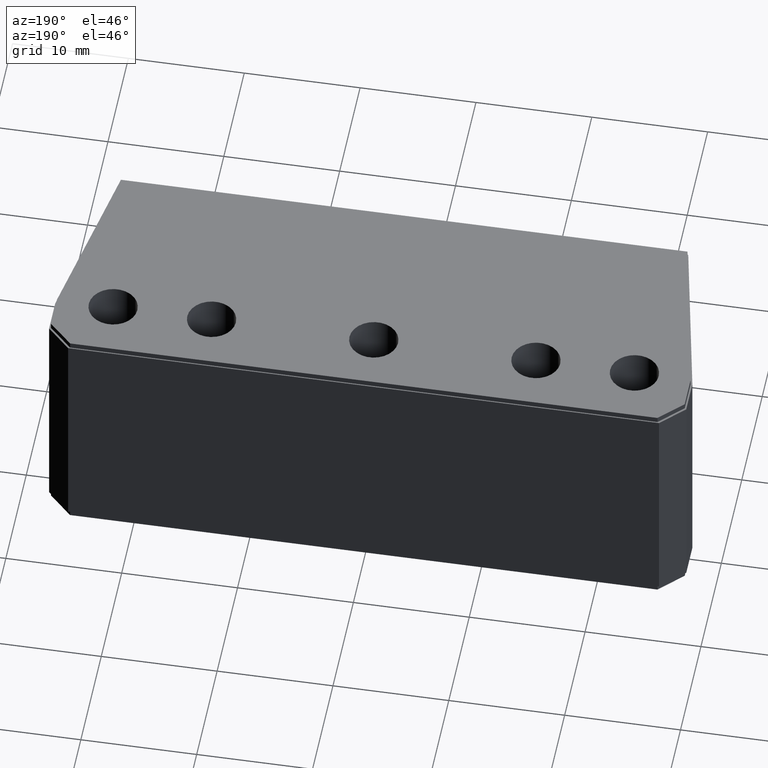
[diagram: clean part render]
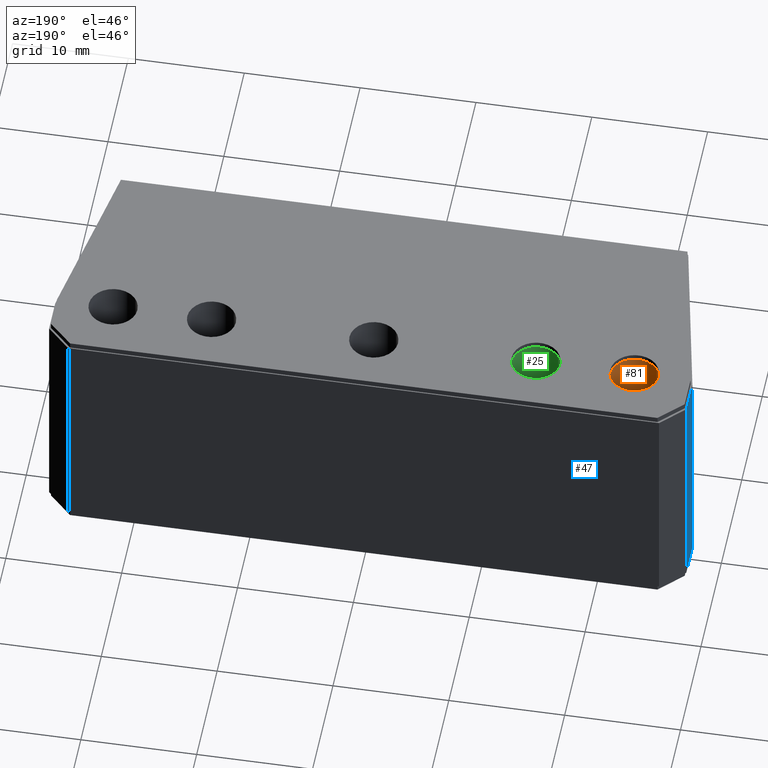
[diagram: same view with three faces highlighted in distinct colors, each labeled with its STEP entity id]
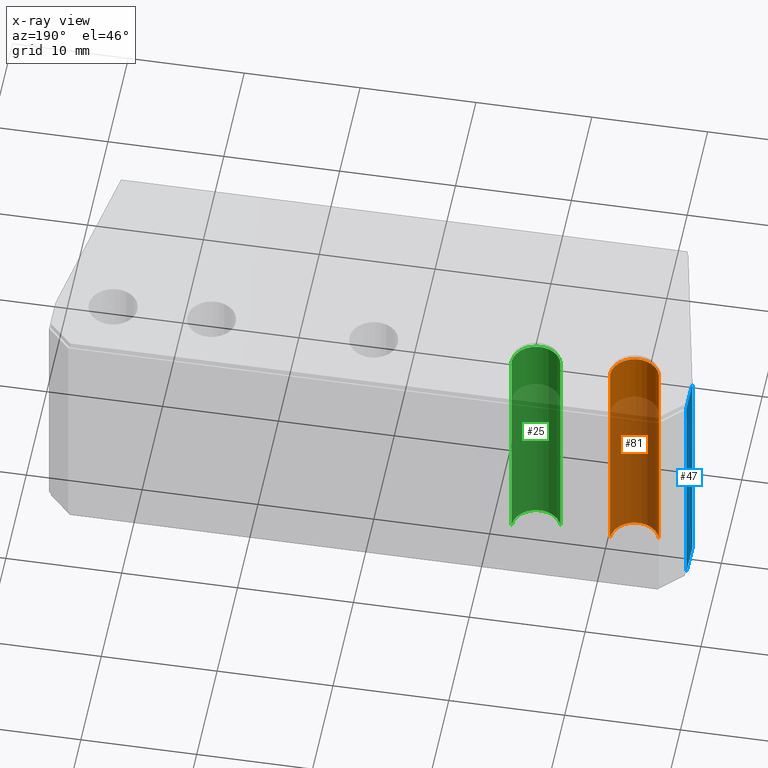
[diagram: x-ray of the same camera — body ghosted, the three highlighted faces saturated]
A machine part, auxiliary view with three faces highlighted in distinct colors.
The next image is the same camera in x-ray (body ghosted, the three faces saturated) — at least one of them is partly hidden behind the body in this view.
Their STEP definitions:

[orange] entity #81 — the highlighted cylindrical surface (edge-blend (fillet) strip) has radius 2.1 mm, axis along (0, 0, 1).
#81 = ADVANCED_FACE ( 'NONE', ( #1959 ), #1960, .F. ) ;
#177 = EDGE_CURVE ( 'NONE', #2786, #2785, #733, .T. ) ;
#181 = EDGE_CURVE ( 'NONE', #2785, #2780, #1645, .T. ) ;
#190 = EDGE_CURVE ( 'NONE', #2786, #2779, #1624, .T. ) ;
#192 = EDGE_CURVE ( 'NONE', #2780, #2779, #674, .T. ) ;
#341 = AXIS2_PLACEMENT_3D ( 'NONE', #1966, #1963, #1958 ) ;
#421 = VECTOR ( 'NONE', #1606, 1000.000000000000000 ) ;
#531 = AXIS2_PLACEMENT_3D ( 'NONE', #1602, #1601, #1600 ) ;
#556 = AXIS2_PLACEMENT_3D ( 'NONE', #1648, #1647, #1646 ) ;
#558 = VECTOR ( 'NONE', #1636, 1000.000000000000000 ) ;
#674 = CIRCLE ( 'NONE', #531, 2.100000000000001000 ) ;
#733 = CIRCLE ( 'NONE', #556, 2.100000000000001000 ) ;
#853 = EDGE_LOOP ( 'NONE', ( #3029, #3030, #2957, #2958 ) ) ;
#1600 = DIRECTION ( 'NONE',  ( 1.000000000000000000, 0.0000000000000000000, 0.0000000000000000000 ) ) ;
#1601 = DIRECTION ( 'NONE',  ( 0.0000000000000000000, 0.0000000000000000000, 1.000000000000000000 ) ) ;
#1602 = CARTESIAN_POINT ( 'NONE',  ( -22.50000000000000400, 0.0000000000000000000, 0.0000000000000000000 ) ) ;
#1606 = DIRECTION ( 'NONE',  ( -0.0000000000000000000, -0.0000000000000000000, 1.000000000000000000 ) ) ;
#1623 = CARTESIAN_POINT ( 'NONE',  ( -20.40000000000000200, 0.0000000000000000000, -21.00000000000000000 ) ) ;
#1624 = LINE ( 'NONE', #1623, #421 ) ;
#1636 = DIRECTION ( 'NONE',  ( -0.0000000000000000000, -0.0000000000000000000, 1.000000000000000000 ) ) ;
#1644 = CARTESIAN_POINT ( 'NONE',  ( -24.60000000000000500, 2.571758278209442000E-016, -21.00000000000000000 ) ) ;
#1645 = LINE ( 'NONE', #1644, #558 ) ;
#1646 = DIRECTION ( 'NONE',  ( -1.000000000000000000, 0.0000000000000000000, 0.0000000000000000000 ) ) ;
#1647 = DIRECTION ( 'NONE',  ( 0.0000000000000000000, 0.0000000000000000000, -1.000000000000000000 ) ) ;
#1648 = CARTESIAN_POINT ( 'NONE',  ( -22.50000000000000400, 0.0000000000000000000, -20.00000000000000000 ) ) ;
#1958 = DIRECTION ( 'NONE',  ( 1.000000000000000000, 0.0000000000000000000, 0.0000000000000000000 ) ) ;
#1959 = FACE_OUTER_BOUND ( 'NONE', #853, .T. ) ;
#1960 = CYLINDRICAL_SURFACE ( 'NONE', #341, 2.100000000000001000 ) ;
#1963 = DIRECTION ( 'NONE',  ( -0.0000000000000000000, -0.0000000000000000000, 1.000000000000000000 ) ) ;
#1966 = CARTESIAN_POINT ( 'NONE',  ( -22.50000000000000400, 0.0000000000000000000, -21.00000000000000000 ) ) ;
#2618 = CARTESIAN_POINT ( 'NONE',  ( -20.40000000000000200, 0.0000000000000000000, -20.00000000000000000 ) ) ;
#2619 = CARTESIAN_POINT ( 'NONE',  ( -24.60000000000000500, 2.571758278209441500E-016, -20.00000000000000000 ) ) ;
#2624 = CARTESIAN_POINT ( 'NONE',  ( -24.60000000000000500, 2.571758278209441500E-016, 0.0000000000000000000 ) ) ;
#2625 = CARTESIAN_POINT ( 'NONE',  ( -20.40000000000000200, 0.0000000000000000000, 0.0000000000000000000 ) ) ;
#2779 = VERTEX_POINT ( 'NONE', #2625 ) ;
#2780 = VERTEX_POINT ( 'NONE', #2624 ) ;
#2785 = VERTEX_POINT ( 'NONE', #2619 ) ;
#2786 = VERTEX_POINT ( 'NONE', #2618 ) ;
#2957 = ORIENTED_EDGE ( 'NONE', *, *, #192, .T. ) ;
#2958 = ORIENTED_EDGE ( 'NONE', *, *, #190, .F. ) ;
#3029 = ORIENTED_EDGE ( 'NONE', *, *, #177, .T. ) ;
#3030 = ORIENTED_EDGE ( 'NONE', *, *, #181, .T. ) ;

[blue] entity #47 — the highlighted planar face has unit normal (-1, 0, 0).
#47 = ADVANCED_FACE ( 'NONE', ( #2125 ), #2124, .T. ) ;
#263 = VECTOR ( 'NONE', #1184, 1000.000000000000000 ) ;
#283 = AXIS2_PLACEMENT_3D ( 'NONE', #2128, #2122, #2121 ) ;
#363 = VECTOR ( 'NONE', #1130, 1000.000000000000000 ) ;
#652 = VECTOR ( 'NONE', #1186, 1000.000000000000000 ) ;
#773 = VECTOR ( 'NONE', #1127, 1000.000000000000000 ) ;
#838 = EDGE_LOOP ( 'NONE', ( #3121, #3122, #3228, #3229 ) ) ;
#1127 = DIRECTION ( 'NONE',  ( -1.734723475976806800E-016, -1.000000000000000000, 0.0000000000000000000 ) ) ;
#1128 = CARTESIAN_POINT ( 'NONE',  ( -27.50000000000000400, 5.000000000000000000, 0.0000000000000000000 ) ) ;
#1129 = LINE ( 'NONE', #1128, #773 ) ;
#1130 = DIRECTION ( 'NONE',  ( -0.0000000000000000000, -0.0000000000000000000, 1.000000000000000000 ) ) ;
#1149 = LINE ( 'NONE', #1166, #363 ) ;
#1166 = CARTESIAN_POINT ( 'NONE',  ( -27.50000000000000400, -6.938893903907228400E-015, -21.00000000000000000 ) ) ;
#1184 = DIRECTION ( 'NONE',  ( -1.734723475976806800E-016, -1.000000000000000000, 0.0000000000000000000 ) ) ;
#1185 = CARTESIAN_POINT ( 'NONE',  ( -27.50000000000000400, 5.000000000000000000, -20.00000000000000000 ) ) ;
#1186 = DIRECTION ( 'NONE',  ( 0.0000000000000000000, 0.0000000000000000000, -1.000000000000000000 ) ) ;
#1187 = CARTESIAN_POINT ( 'NONE',  ( -27.50000000000000400, 2.999999999999992500, -20.00000000000000000 ) ) ;
#1189 = LINE ( 'NONE', #1187, #652 ) ;
#1207 = LINE ( 'NONE', #1185, #263 ) ;
#1324 = EDGE_CURVE ( 'NONE', #2845, #2866, #1189, .T. ) ;
#1327 = EDGE_CURVE ( 'NONE', #2866, #2850, #1207, .T. ) ;
#1350 = EDGE_CURVE ( 'NONE', #2850, #2849, #1149, .T. ) ;
#1353 = EDGE_CURVE ( 'NONE', #2845, #2849, #1129, .T. ) ;
#2121 = DIRECTION ( 'NONE',  ( -1.734723475976806600E-016, -1.000000000000000000, 0.0000000000000000000 ) ) ;
#2122 = DIRECTION ( 'NONE',  ( -1.000000000000000000, 1.734723475976806600E-016, 0.0000000000000000000 ) ) ;
#2124 = PLANE ( 'NONE',  #283 ) ;
#2125 = FACE_OUTER_BOUND ( 'NONE', #838, .T. ) ;
#2128 = CARTESIAN_POINT ( 'NONE',  ( -27.50000000000000400, 5.000000000000000000, -20.00000000000000000 ) ) ;
#2515 = CARTESIAN_POINT ( 'NONE',  ( -27.50000000000000700, 2.999999999999987100, -20.00000000000000000 ) ) ;
#2536 = CARTESIAN_POINT ( 'NONE',  ( -27.50000000000000400, -6.938893903907228400E-015, -20.00000000000000000 ) ) ;
#2537 = CARTESIAN_POINT ( 'NONE',  ( -27.50000000000000400, -6.938893903907228400E-015, 0.0000000000000000000 ) ) ;
#2542 = CARTESIAN_POINT ( 'NONE',  ( -27.50000000000000400, 2.999999999999993300, 0.0000000000000000000 ) ) ;
#2845 = VERTEX_POINT ( 'NONE', #2542 ) ;
#2849 = VERTEX_POINT ( 'NONE', #2537 ) ;
#2850 = VERTEX_POINT ( 'NONE', #2536 ) ;
#2866 = VERTEX_POINT ( 'NONE', #2515 ) ;
#3121 = ORIENTED_EDGE ( 'NONE', *, *, #1350, .T. ) ;
#3122 = ORIENTED_EDGE ( 'NONE', *, *, #1353, .F. ) ;
#3228 = ORIENTED_EDGE ( 'NONE', *, *, #1324, .T. ) ;
#3229 = ORIENTED_EDGE ( 'NONE', *, *, #1327, .T. ) ;

[green] entity #25 — the highlighted cylindrical surface (edge-blend (fillet) strip) has radius 2.1 mm, axis along (0, 0, 1).
#25 = ADVANCED_FACE ( 'NONE', ( #2248 ), #2249, .F. ) ;
#100 = EDGE_CURVE ( 'NONE', #2782, #2781, #530, .T. ) ;
#102 = EDGE_CURVE ( 'NONE', #2808, #2807, #477, .T. ) ;
#105 = EDGE_CURVE ( 'NONE', #2782, #2807, #1872, .T. ) ;
#146 = EDGE_CURVE ( 'NONE', #2781, #2808, #1742, .T. ) ;
#393 = AXIS2_PLACEMENT_3D ( 'NONE', #2247, #2251, #2245 ) ;
#477 = CIRCLE ( 'NONE', #647, 2.099999999999999600 ) ;
#478 = VECTOR ( 'NONE', #1861, 1000.000000000000000 ) ;
#530 = CIRCLE ( 'NONE', #534, 2.099999999999999600 ) ;
#534 = AXIS2_PLACEMENT_3D ( 'NONE', #1880, #1879, #1878 ) ;
#647 = AXIS2_PLACEMENT_3D ( 'NONE', #1871, #1870, #1869 ) ;
#699 = VECTOR ( 'NONE', #1740, 1000.000000000000000 ) ;
#921 = EDGE_LOOP ( 'NONE', ( #2960, #2962, #2993, #3184 ) ) ;
#1740 = DIRECTION ( 'NONE',  ( -0.0000000000000000000, -0.0000000000000000000, 1.000000000000000000 ) ) ;
#1741 = CARTESIAN_POINT ( 'NONE',  ( -16.10000000000000100, 2.571758278209440000E-016, -21.00000000000000000 ) ) ;
#1742 = LINE ( 'NONE', #1741, #699 ) ;
#1861 = DIRECTION ( 'NONE',  ( -0.0000000000000000000, -0.0000000000000000000, 1.000000000000000000 ) ) ;
#1863 = CARTESIAN_POINT ( 'NONE',  ( -11.90000000000000400, 0.0000000000000000000, -21.00000000000000000 ) ) ;
#1869 = DIRECTION ( 'NONE',  ( 1.000000000000000000, 0.0000000000000000000, 0.0000000000000000000 ) ) ;
#1870 = DIRECTION ( 'NONE',  ( 0.0000000000000000000, 0.0000000000000000000, 1.000000000000000000 ) ) ;
#1871 = CARTESIAN_POINT ( 'NONE',  ( -14.00000000000000400, 0.0000000000000000000, 0.0000000000000000000 ) ) ;
#1872 = LINE ( 'NONE', #1863, #478 ) ;
#1878 = DIRECTION ( 'NONE',  ( -1.000000000000000000, 0.0000000000000000000, 0.0000000000000000000 ) ) ;
#1879 = DIRECTION ( 'NONE',  ( 0.0000000000000000000, 0.0000000000000000000, -1.000000000000000000 ) ) ;
#1880 = CARTESIAN_POINT ( 'NONE',  ( -14.00000000000000400, 0.0000000000000000000, -20.00000000000000000 ) ) ;
#2245 = DIRECTION ( 'NONE',  ( 1.000000000000000000, 0.0000000000000000000, 0.0000000000000000000 ) ) ;
#2247 = CARTESIAN_POINT ( 'NONE',  ( -14.00000000000000400, 0.0000000000000000000, -21.00000000000000000 ) ) ;
#2248 = FACE_OUTER_BOUND ( 'NONE', #921, .T. ) ;
#2249 = CYLINDRICAL_SURFACE ( 'NONE', #393, 2.099999999999999600 ) ;
#2251 = DIRECTION ( 'NONE',  ( -0.0000000000000000000, -0.0000000000000000000, 1.000000000000000000 ) ) ;
#2595 = CARTESIAN_POINT ( 'NONE',  ( -16.10000000000000100, 2.571758278209439500E-016, 0.0000000000000000000 ) ) ;
#2596 = CARTESIAN_POINT ( 'NONE',  ( -11.90000000000000400, 0.0000000000000000000, 0.0000000000000000000 ) ) ;
#2622 = CARTESIAN_POINT ( 'NONE',  ( -11.90000000000000400, 0.0000000000000000000, -20.00000000000000000 ) ) ;
#2623 = CARTESIAN_POINT ( 'NONE',  ( -16.10000000000000100, 2.571758278209439500E-016, -20.00000000000000000 ) ) ;
#2781 = VERTEX_POINT ( 'NONE', #2623 ) ;
#2782 = VERTEX_POINT ( 'NONE', #2622 ) ;
#2807 = VERTEX_POINT ( 'NONE', #2596 ) ;
#2808 = VERTEX_POINT ( 'NONE', #2595 ) ;
#2960 = ORIENTED_EDGE ( 'NONE', *, *, #100, .T. ) ;
#2962 = ORIENTED_EDGE ( 'NONE', *, *, #146, .T. ) ;
#2993 = ORIENTED_EDGE ( 'NONE', *, *, #102, .T. ) ;
#3184 = ORIENTED_EDGE ( 'NONE', *, *, #105, .F. ) ;